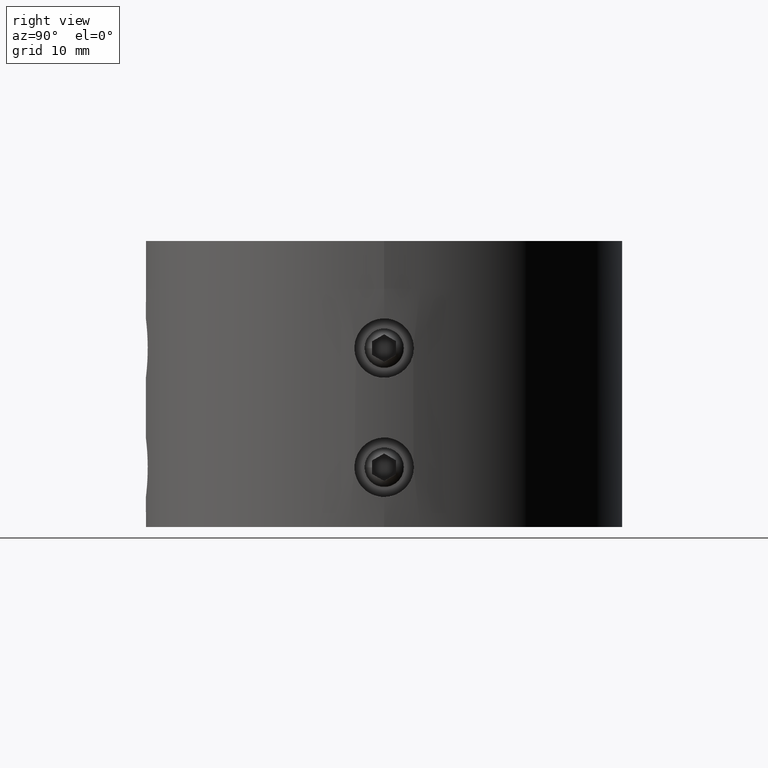
[diagram: clean part render]
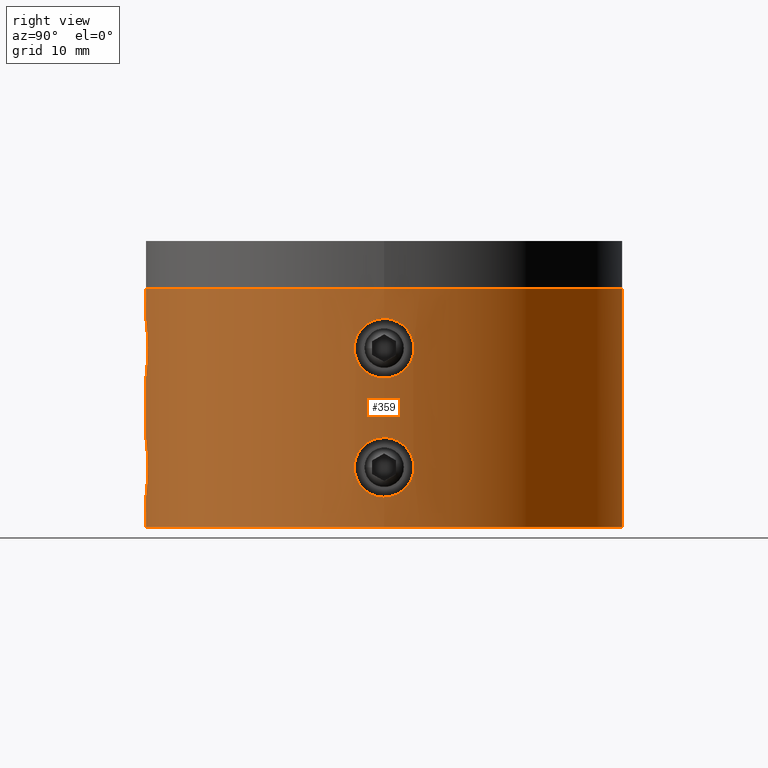
[diagram: same view with one face highlighted and labeled with its STEP entity id]
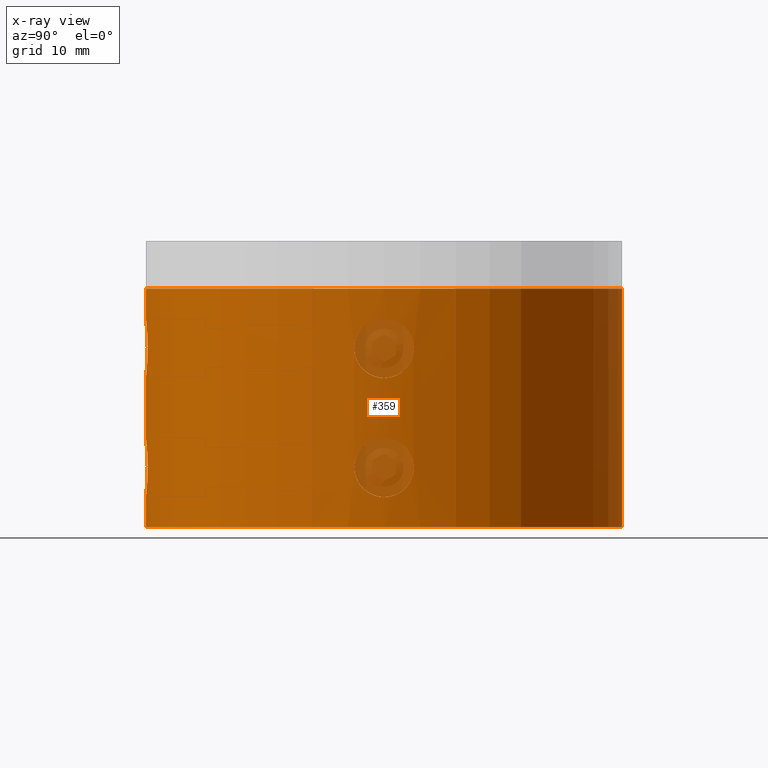
[diagram: x-ray of the same camera — body ghosted, the highlighted face saturated]
A machine part, right view. The second image highlights one B-rep face of the part: STEP entity #359.
The next image is the same camera in x-ray: the body ghosted, the highlighted face saturated — about 5% of this face is hidden behind the body in this view.
In plain terms, the highlighted cylindrical surface (bore or boss wall) has radius 20 mm, axis along (-0, 0, -1).
Its self-contained STEP definition (entity closure, byte-faithful):
#359 = ADVANCED_FACE( '', ( #430, #431, #432, #433, #434, #435 ), #436, .T. );
#430 = FACE_BOUND( '', #602, .T. );
#431 = FACE_BOUND( '', #603, .T. );
#432 = FACE_BOUND( '', #604, .T. );
#433 = FACE_BOUND( '', #605, .T. );
#434 = FACE_OUTER_BOUND( '', #606, .T. );
#435 = FACE_OUTER_BOUND( '', #607, .T. );
#436 = CYLINDRICAL_SURFACE( '', #608, 20.0000000000000 );
#602 = EDGE_LOOP( '', ( #774 ) );
#603 = EDGE_LOOP( '', ( #775 ) );
#604 = EDGE_LOOP( '', ( #776 ) );
#605 = EDGE_LOOP( '', ( #777 ) );
#606 = EDGE_LOOP( '', ( #778 ) );
#607 = EDGE_LOOP( '', ( #779 ) );
#608 = AXIS2_PLACEMENT_3D( '', #780, #781, #782 );
#774 = ORIENTED_EDGE( '', *, *, #1186, .F. );
#775 = ORIENTED_EDGE( '', *, *, #1187, .F. );
#776 = ORIENTED_EDGE( '', *, *, #1188, .F. );
#777 = ORIENTED_EDGE( '', *, *, #1189, .F. );
#778 = ORIENTED_EDGE( '', *, *, #1190, .T. );
#779 = ORIENTED_EDGE( '', *, *, #1191, .F. );
#780 = CARTESIAN_POINT( '', ( 0.000000000000000, 0.000000000000000, -34.0000000000000 ) );
#781 = DIRECTION( '', ( -0.000000000000000, 0.000000000000000, -1.00000000000000 ) );
#782 = DIRECTION( '', ( -1.00000000000000, 0.000000000000000, 0.000000000000000 ) );
#1186 = EDGE_CURVE( '', #1298, #1298, #1299, .T. );
#1187 = EDGE_CURVE( '', #1300, #1300, #1301, .T. );
#1188 = EDGE_CURVE( '', #1302, #1302, #1303, .T. );
#1189 = EDGE_CURVE( '', #1304, #1304, #1305, .T. );
#1190 = EDGE_CURVE( '', #1306, #1306, #1307, .T. );
#1191 = EDGE_CURVE( '', #1308, #1308, #1309, .T. );
#1298 = VERTEX_POINT( '', #1490 );
#1299 = B_SPLINE_CURVE_WITH_KNOTS( '', 3, ( #1491, #1492, #1493, #1494, #1495, #1496, #1497, #1498, #1499, #1500, #1501, #1502, #1503, #1504, #1505, #1506, #1507, #1508, #1509, #1510, #1511, #1512, #1513, #1514, #1515, #1516, #1517, #1518, #1519, #1520, #1521, #1522, #1523, #1524, #1525, #1526, #1527, #1528, #1529, #1530, #1531, #1532, #1533, #1534, #1535, #1536, #1537, #1538, #1539, #1540, #1541, #1542, #1543, #1544, #1545, #1546, #1547, #1548, #1549, #1550, #1551, #1552, #1553, #1554 ), .UNSPECIFIED., .T., .F., ( 2, 2, 2, 2, 2, 2, 2, 2, 2, 2, 2, 2, 2, 2, 2, 2, 2, 2, 2, 2, 2, 2, 2, 2, 2, 2, 2, 2, 2, 2, 2, 2, 2, 2 ), ( -0.000977855993839807, 0.000000000000000, 0.000488927996919902, 0.000977855993839803, 0.00146678399075970, 0.00195571198767961, 0.00244463998459951, 0.00293356798151941, 0.00342249597843931, 0.00391142397535921, 0.00440035197227912, 0.00488927996919902, 0.00537820796611892, 0.00586713596303882, 0.00635606395995872, 0.00684499195687862, 0.00733391995379852, 0.00782284795071843, 0.00831177594763833, 0.00880070394455823, 0.00928963194147813, 0.00977855993839803, 0.0102674879353179, 0.0107564159322378, 0.0112453439291577, 0.0117342719260776, 0.0122231999229975, 0.0127121279199174, 0.0132010559168373, 0.0136899839137572, 0.0141789119106771, 0.0146678399075971, 0.0156456959014369, 0.0161346238983568 ), .UNSPECIFIED. );
#1300 = VERTEX_POINT( '', #1555 );
#1301 = B_SPLINE_CURVE_WITH_KNOTS( '', 3, ( #1556, #1557, #1558, #1559, #1560, #1561, #1562, #1563, #1564, #1565, #1566, #1567, #1568, #1569, #1570, #1571, #1572, #1573, #1574, #1575, #1576, #1577, #1578, #1579, #1580, #1581, #1582, #1583, #1584, #1585, #1586, #1587, #1588, #1589, #1590, #1591, #1592, #1593, #1594, #1595, #1596, #1597, #1598, #1599, #1600, #1601, #1602, #1603, #1604, #1605, #1606, #1607, #1608, #1609, #1610, #1611, #1612, #1613, #1614, #1615, #1616, #1617, #1618, #1619 ), .UNSPECIFIED., .T., .F., ( 2, 2, 2, 2, 2, 2, 2, 2, 2, 2, 2, 2, 2, 2, 2, 2, 2, 2, 2, 2, 2, 2, 2, 2, 2, 2, 2, 2, 2, 2, 2, 2, 2, 2 ), ( -0.000977855993839807, 0.000000000000000, 0.000488927996919900, 0.000977855993839801, 0.00146678399075970, 0.00195571198767960, 0.00244463998459950, 0.00293356798151940, 0.00342249597843930, 0.00391142397535920, 0.00440035197227910, 0.00488927996919900, 0.00537820796611890, 0.00586713596303880, 0.00635606395995870, 0.00684499195687860, 0.00733391995379850, 0.00782284795071840, 0.00831177594763830, 0.00880070394455820, 0.00928963194147810, 0.00977855993839800, 0.0102674879353179, 0.0107564159322378, 0.0112453439291577, 0.0117342719260776, 0.0122231999229975, 0.0127121279199174, 0.0132010559168373, 0.0136899839137572, 0.0141789119106771, 0.0146678399075971, 0.0156456959014369, 0.0161346238983568 ), .UNSPECIFIED. );
#1302 = VERTEX_POINT( '', #1620 );
#1303 = B_SPLINE_CURVE_WITH_KNOTS( '', 3, ( #1621, #1622, #1623, #1624, #1625, #1626, #1627, #1628, #1629, #1630, #1631, #1632, #1633, #1634, #1635, #1636, #1637, #1638, #1639, #1640, #1641, #1642, #1643, #1644, #1645, #1646, #1647, #1648, #1649, #1650, #1651, #1652, #1653, #1654, #1655, #1656, #1657, #1658, #1659, #1660, #1661, #1662, #1663, #1664, #1665, #1666, #1667, #1668, #1669, #1670, #1671, #1672, #1673, #1674, #1675, #1676, #1677, #1678, #1679, #1680, #1681, #1682, #1683, #1684 ), .UNSPECIFIED., .T., .F., ( 2, 2, 2, 2, 2, 2, 2, 2, 2, 2, 2, 2, 2, 2, 2, 2, 2, 2, 2, 2, 2, 2, 2, 2, 2, 2, 2, 2, 2, 2, 2, 2, 2, 2 ), ( -0.000977855993839804, 0.000000000000000, 0.000488927996919902, 0.000977855993839804, 0.00146678399075971, 0.00195571198767961, 0.00244463998459951, 0.00293356798151941, 0.00342249597843931, 0.00391142397535922, 0.00440035197227912, 0.00488927996919902, 0.00537820796611892, 0.00586713596303882, 0.00635606395995873, 0.00684499195687863, 0.00733391995379853, 0.00782284795071843, 0.00831177594763833, 0.00880070394455823, 0.00928963194147813, 0.00977855993839804, 0.0102674879353179, 0.0107564159322378, 0.0112453439291577, 0.0117342719260776, 0.0122231999229975, 0.0127121279199175, 0.0132010559168374, 0.0136899839137573, 0.0141789119106772, 0.0146678399075971, 0.0156456959014369, 0.0161346238983568 ), .UNSPECIFIED. );
#1304 = VERTEX_POINT( '', #1685 );
#1305 = B_SPLINE_CURVE_WITH_KNOTS( '', 3, ( #1686, #1687, #1688, #1689, #1690, #1691, #1692, #1693, #1694, #1695, #1696, #1697, #1698, #1699, #1700, #1701, #1702, #1703, #1704, #1705, #1706, #1707, #1708, #1709, #1710, #1711, #1712, #1713, #1714, #1715, #1716, #1717, #1718, #1719, #1720, #1721, #1722, #1723, #1724, #1725, #1726, #1727, #1728, #1729, #1730, #1731, #1732, #1733, #1734, #1735, #1736, #1737, #1738, #1739, #1740, #1741, #1742, #1743, #1744, #1745, #1746, #1747, #1748, #1749 ), .UNSPECIFIED., .T., .F., ( 2, 2, 2, 2, 2, 2, 2, 2, 2, 2, 2, 2, 2, 2, 2, 2, 2, 2, 2, 2, 2, 2, 2, 2, 2, 2, 2, 2, 2, 2, 2, 2, 2, 2 ), ( -0.000977855993839807, 0.000000000000000, 0.000488927996919900, 0.000977855993839800, 0.00146678399075970, 0.00195571198767960, 0.00244463998459950, 0.00293356798151940, 0.00342249597843930, 0.00391142397535920, 0.00440035197227910, 0.00488927996919900, 0.00537820796611890, 0.00586713596303880, 0.00635606395995870, 0.00684499195687860, 0.00733391995379850, 0.00782284795071840, 0.00831177594763830, 0.00880070394455820, 0.00928963194147810, 0.00977855993839800, 0.0102674879353179, 0.0107564159322378, 0.0112453439291577, 0.0117342719260776, 0.0122231999229975, 0.0127121279199174, 0.0132010559168373, 0.0136899839137572, 0.0141789119106771, 0.0146678399075970, 0.0156456959014369, 0.0161346238983568 ), .UNSPECIFIED. );
#1306 = VERTEX_POINT( '', #1750 );
#1307 = CIRCLE( '', #1751, 20.0000000000000 );
#1308 = VERTEX_POINT( '', #1752 );
#1309 = CIRCLE( '', #1753, 20.0000000000000 );
#1490 = CARTESIAN_POINT( '', ( 19.8431348329844, 2.50000000000000, -19.0000000000000 ) );
#1491 = CARTESIAN_POINT( '', ( 19.8431348329845, 2.50000000000000, -19.3306705126766 ) );
#1492 = CARTESIAN_POINT( '', ( 19.8431348329844, 2.50000000000000, -18.8346647436617 ) );
#1493 = CARTESIAN_POINT( '', ( 19.8451999504549, 2.48376037073877, -18.6721250012391 ) );
#1494 = CARTESIAN_POINT( '', ( 19.8530563813011, 2.42016093962049, -18.3523977915416 ) );
#1495 = CARTESIAN_POINT( '', ( 19.8589407179123, 2.37201743676022, -18.1935412149563 ) );
#1496 = CARTESIAN_POINT( '', ( 19.8735331921165, 2.24647982846315, -17.8908693167274 ) );
#1497 = CARTESIAN_POINT( '', ( 19.8821728498970, 2.16968208183429, -17.7473415011313 ) );
#1498 = CARTESIAN_POINT( '', ( 19.9011332533963, 1.98826879469967, -17.4757097221840 ) );
#1499 = CARTESIAN_POINT( '', ( 19.9115168514063, 1.88278326122355, -17.3472250898610 ) );
#1500 = CARTESIAN_POINT( '', ( 19.9319598457381, 1.65237793511715, -17.1168683339005 ) );
#1501 = CARTESIAN_POINT( '', ( 19.9421201764693, 1.52662867647319, -17.0134408339376 ) );
#1502 = CARTESIAN_POINT( '', ( 19.9611549636309, 1.25341324649460, -16.8306757573824 ) );
#1503 = CARTESIAN_POINT( '', ( 19.9698442585154, 1.10814451730824, -16.7531093816609 ) );
#1504 = CARTESIAN_POINT( '', ( 19.9842630899309, 0.807398744752935, -16.6283741886647 ) );
#1505 = CARTESIAN_POINT( '', ( 19.9900965559976, 0.649693297575543, -16.5802938453219 ) );
#1506 = CARTESIAN_POINT( '', ( 19.9979795752332, 0.326916820581655, -16.5160103365106 ) );
#1507 = CARTESIAN_POINT( '', ( 19.9999886238825, 0.164603943620750, -16.5000910089542 ) );
#1508 = CARTESIAN_POINT( '', ( 20.0000112797773, -0.161827755542730, -16.4999097617679 ) );
#1509 = CARTESIAN_POINT( '', ( 19.9979596225618, -0.327637660979743, -16.5161737910485 ) );
#1510 = CARTESIAN_POINT( '', ( 19.9901307806305, -0.648387905341472, -16.5800140088476 ) );
#1511 = CARTESIAN_POINT( '', ( 19.9843959457373, -0.804303507921184, -16.6272475534347 ) );
#1512 = CARTESIAN_POINT( '', ( 19.9699060193386, -1.10717615023170, -16.7525527196630 ) );
#1513 = CARTESIAN_POINT( '', ( 19.9611500654949, -1.25335531491191, -16.8307604972882 ) );
#1514 = CARTESIAN_POINT( '', ( 19.9423067182636, -1.52407815984763, -17.0116123797864 ) );
#1515 = CARTESIAN_POINT( '', ( 19.9321298958606, -1.65042842490572, -17.1149845434462 ) );
#1516 = CARTESIAN_POINT( '', ( 19.9114344757626, -1.88374448601919, -17.3481210793233 ) );
#1517 = CARTESIAN_POINT( '', ( 19.9012517915749, -1.98707402278861, -17.4742111163077 ) );
#1518 = CARTESIAN_POINT( '', ( 19.8823397906495, -2.16814448154623, -17.7447532526308 ) );
#1519 = CARTESIAN_POINT( '', ( 19.8735289657585, -2.24651682267176, -17.8909482132179 ) );
#1520 = CARTESIAN_POINT( '', ( 19.8589395811235, -2.37202658093808, -18.1935735621677 ) );
#1521 = CARTESIAN_POINT( '', ( 19.8531508773540, -2.41938917193464, -18.3493960607167 ) );
#1522 = CARTESIAN_POINT( '', ( 19.8452310387218, -2.48351540039675, -18.6700292329952 ) );
#1523 = CARTESIAN_POINT( '', ( 19.8431425766259, -2.49993853674691, -18.8358344136032 ) );
#1524 = CARTESIAN_POINT( '', ( 19.8431271337471, -2.50006111080627, -19.1622882297131 ) );
#1525 = CARTESIAN_POINT( '', ( 19.8451338844150, -2.48429074703692, -19.3246278320017 ) );
#1526 = CARTESIAN_POINT( '', ( 19.8530400374251, -2.42029764255657, -19.6474898196562 ) );
#1527 = CARTESIAN_POINT( '', ( 19.8588973896626, -2.37236638894921, -19.8052305300815 ) );
#1528 = CARTESIAN_POINT( '', ( 19.8733754015875, -2.24786075283608, -20.1061828627539 ) );
#1529 = CARTESIAN_POINT( '', ( 19.8821072736234, -2.17030446512811, -20.2517023406937 ) );
#1530 = CARTESIAN_POINT( '', ( 19.9011750398982, -1.98787402582729, -20.5249055965844 ) );
#1531 = CARTESIAN_POINT( '', ( 19.9113468003888, -1.88457572592326, -20.6507362445156 ) );
#1532 = CARTESIAN_POINT( '', ( 19.9317969003718, -1.65433654206872, -20.8814160680915 ) );
#1533 = CARTESIAN_POINT( '', ( 19.9421701949708, -1.52589079017970, -20.9870335460305 ) );
#1534 = CARTESIAN_POINT( '', ( 19.9610766249009, -1.25455759675432, -21.1685779333544 ) );
#1535 = CARTESIAN_POINT( '', ( 19.9696857444592, -1.11112527388525, -21.2454963903480 ) );
#1536 = CARTESIAN_POINT( '', ( 19.9842256063626, -0.808501713495634, -21.3713241854725 ) );
#1537 = CARTESIAN_POINT( '', ( 19.9900821476984, -0.649745315512696, -21.4195844547583 ) );
#1538 = CARTESIAN_POINT( '', ( 19.9979140175442, -0.330133599730241, -21.4834592235565 ) );
#1539 = CARTESIAN_POINT( '', ( 19.9999811730103, -0.167580600947785, -21.4998493840222 ) );
#1540 = CARTESIAN_POINT( '', ( 20.0000185711153, 0.163056228412592, -21.5001485689827 ) );
#1541 = CARTESIAN_POINT( '', ( 19.9979889733206, 0.325610539741725, -21.4840592000678 ) );
#1542 = CARTESIAN_POINT( '', ( 19.9902229447223, 0.645423753004395, -21.4207437931533 ) );
#1543 = CARTESIAN_POINT( '', ( 19.9843933723230, 0.804356341668876, -21.3727301256626 ) );
#1544 = CARTESIAN_POINT( '', ( 19.9699091692519, 1.10711126629625, -21.2474745866527 ) );
#1545 = CARTESIAN_POINT( '', ( 19.9613193602182, 1.25071726811698, -21.1708041390043 ) );
#1546 = CARTESIAN_POINT( '', ( 19.9424262738342, 1.52256316718686, -20.9895943547894 ) );
#1547 = CARTESIAN_POINT( '', ( 19.9320642731651, 1.65112247035723, -20.8842313087022 ) );
#1548 = CARTESIAN_POINT( '', ( 19.9116232121634, 1.88166220627925, -20.6540496903880 ) );
#1549 = CARTESIAN_POINT( '', ( 19.9014421655392, 1.98521228174483, -20.5283843505121 ) );
#1550 = CARTESIAN_POINT( '', ( 19.8823315901916, 2.16826165615632, -20.2552561160668 ) );
#1551 = CARTESIAN_POINT( '', ( 19.8735970675182, 2.24590709303218, -20.1101363813470 ) );
#1552 = CARTESIAN_POINT( '', ( 19.8518099130265, 2.43340902181754, -19.6591861310939 ) );
#1553 = CARTESIAN_POINT( '', ( 19.8431348329845, 2.50000000000000, -19.3306705126766 ) );
#1554 = CARTESIAN_POINT( '', ( 19.8431348329844, 2.50000000000000, -18.8346647436617 ) );
#1555 = CARTESIAN_POINT( '', ( 19.8431348329844, 2.50000000000000, -29.0000000000000 ) );
#1556 = CARTESIAN_POINT( '', ( 19.8431348329844, 2.50000000000000, -29.3306705126766 ) );
#1557 = CARTESIAN_POINT( '', ( 19.8431348329844, 2.50000000000000, -28.8346647436617 ) );
#1558 = CARTESIAN_POINT( '', ( 19.8451999504549, 2.48376037073876, -28.6721250012390 ) );
#1559 = CARTESIAN_POINT( '', ( 19.8530563813011, 2.42016093962049, -28.3523977915416 ) );
#1560 = CARTESIAN_POINT( '', ( 19.8589407179123, 2.37201743676022, -28.1935412149563 ) );
#1561 = CARTESIAN_POINT( '', ( 19.8735331921166, 2.24647982846315, -27.8908693167274 ) );
#1562 = CARTESIAN_POINT( '', ( 19.8821728498970, 2.16968208183429, -27.7473415011313 ) );
#1563 = CARTESIAN_POINT( '', ( 19.9011332533963, 1.98826879469967, -27.4757097221840 ) );
#1564 = CARTESIAN_POINT( '', ( 19.9115168514063, 1.88278326122355, -27.3472250898610 ) );
#1565 = CARTESIAN_POINT( '', ( 19.9319598457381, 1.65237793511715, -27.1168683339005 ) );
#1566 = CARTESIAN_POINT( '', ( 19.9421201764693, 1.52662867647319, -27.0134408339376 ) );
#1567 = CARTESIAN_POINT( '', ( 19.9611549636309, 1.25341324649460, -26.8306757573824 ) );
#1568 = CARTESIAN_POINT( '', ( 19.9698442585154, 1.10814451730824, -26.7531093816609 ) );
#1569 = CARTESIAN_POINT( '', ( 19.9842630899309, 0.807398744752936, -26.6283741886647 ) );
#1570 = CARTESIAN_POINT( '', ( 19.9900965559976, 0.649693297575543, -26.5802938453220 ) );
#1571 = CARTESIAN_POINT( '', ( 19.9979795752332, 0.326916820581655, -26.5160103365106 ) );
#1572 = CARTESIAN_POINT( '', ( 19.9999886238825, 0.164603943620750, -26.5000910089542 ) );
#1573 = CARTESIAN_POINT( '', ( 20.0000112797773, -0.161827755542730, -26.4999097617679 ) );
#1574 = CARTESIAN_POINT( '', ( 19.9979596225619, -0.327637660979743, -26.5161737910485 ) );
#1575 = CARTESIAN_POINT( '', ( 19.9901307806305, -0.648387905341472, -26.5800140088477 ) );
#1576 = CARTESIAN_POINT( '', ( 19.9843959457373, -0.804303507921183, -26.6272475534347 ) );
#1577 = CARTESIAN_POINT( '', ( 19.9699060193386, -1.10717615023170, -26.7525527196630 ) );
#1578 = CARTESIAN_POINT( '', ( 19.9611500654949, -1.25335531491191, -26.8307604972882 ) );
#1579 = CARTESIAN_POINT( '', ( 19.9423067182636, -1.52407815984763, -27.0116123797864 ) );
#1580 = CARTESIAN_POINT( '', ( 19.9321298958606, -1.65042842490572, -27.1149845434462 ) );
#1581 = CARTESIAN_POINT( '', ( 19.9114344757627, -1.88374448601919, -27.3481210793233 ) );
#1582 = CARTESIAN_POINT( '', ( 19.9012517915749, -1.98707402278862, -27.4742111163077 ) );
#1583 = CARTESIAN_POINT( '', ( 19.8823397906495, -2.16814448154623, -27.7447532526308 ) );
#1584 = CARTESIAN_POINT( '', ( 19.8735289657585, -2.24651682267176, -27.8909482132179 ) );
#1585 = CARTESIAN_POINT( '', ( 19.8589395811235, -2.37202658093809, -28.1935735621677 ) );
#1586 = CARTESIAN_POINT( '', ( 19.8531508773540, -2.41938917193465, -28.3493960607167 ) );
#1587 = CARTESIAN_POINT( '', ( 19.8452310387218, -2.48351540039675, -28.6700292329952 ) );
#1588 = CARTESIAN_POINT( '', ( 19.8431425766259, -2.49993853674691, -28.8358344136032 ) );
#1589 = CARTESIAN_POINT( '', ( 19.8431271337471, -2.50006111080627, -29.1622882297131 ) );
#1590 = CARTESIAN_POINT( '', ( 19.8451338844150, -2.48429074703692, -29.3246278320017 ) );
#1591 = CARTESIAN_POINT( '', ( 19.8530400374251, -2.42029764255657, -29.6474898196562 ) );
#1592 = CARTESIAN_POINT( '', ( 19.8588973896626, -2.37236638894921, -29.8052305300815 ) );
#1593 = CARTESIAN_POINT( '', ( 19.8733754015875, -2.24786075283608, -30.1061828627539 ) );
#1594 = CARTESIAN_POINT( '', ( 19.8821072736234, -2.17030446512811, -30.2517023406938 ) );
#1595 = CARTESIAN_POINT( '', ( 19.9011750398982, -1.98787402582729, -30.5249055965844 ) );
#1596 = CARTESIAN_POINT( '', ( 19.9113468003888, -1.88457572592326, -30.6507362445156 ) );
#1597 = CARTESIAN_POINT( '', ( 19.9317969003718, -1.65433654206872, -30.8814160680915 ) );
#1598 = CARTESIAN_POINT( '', ( 19.9421701949708, -1.52589079017970, -30.9870335460305 ) );
#1599 = CARTESIAN_POINT( '', ( 19.9610766249008, -1.25455759675432, -31.1685779333544 ) );
#1600 = CARTESIAN_POINT( '', ( 19.9696857444592, -1.11112527388525, -31.2454963903480 ) );
#1601 = CARTESIAN_POINT( '', ( 19.9842256063626, -0.808501713495634, -31.3713241854725 ) );
#1602 = CARTESIAN_POINT( '', ( 19.9900821476984, -0.649745315512693, -31.4195844547583 ) );
#1603 = CARTESIAN_POINT( '', ( 19.9979140175442, -0.330133599730240, -31.4834592235565 ) );
#1604 = CARTESIAN_POINT( '', ( 19.9999811730103, -0.167580600947783, -31.4998493840222 ) );
#1605 = CARTESIAN_POINT( '', ( 20.0000185711153, 0.163056228412593, -31.5001485689827 ) );
#1606 = CARTESIAN_POINT( '', ( 19.9979889733206, 0.325610539741726, -31.4840592000678 ) );
#1607 = CARTESIAN_POINT( '', ( 19.9902229447223, 0.645423753004396, -31.4207437931533 ) );
#1608 = CARTESIAN_POINT( '', ( 19.9843933723230, 0.804356341668873, -31.3727301256626 ) );
#1609 = CARTESIAN_POINT( '', ( 19.9699091692519, 1.10711126629625, -31.2474745866527 ) );
#1610 = CARTESIAN_POINT( '', ( 19.9613193602182, 1.25071726811698, -31.1708041390043 ) );
#1611 = CARTESIAN_POINT( '', ( 19.9424262738342, 1.52256316718686, -30.9895943547894 ) );
#1612 = CARTESIAN_POINT( '', ( 19.9320642731651, 1.65112247035723, -30.8842313087022 ) );
#1613 = CARTESIAN_POINT( '', ( 19.9116232121634, 1.88166220627925, -30.6540496903880 ) );
#1614 = CARTESIAN_POINT( '', ( 19.9014421655392, 1.98521228174483, -30.5283843505121 ) );
#1615 = CARTESIAN_POINT( '', ( 19.8823315901916, 2.16826165615632, -30.2552561160668 ) );
#1616 = CARTESIAN_POINT( '', ( 19.8735970675182, 2.24590709303218, -30.1101363813470 ) );
#1617 = CARTESIAN_POINT( '', ( 19.8518099130265, 2.43340902181753, -29.6591861310939 ) );
#1618 = CARTESIAN_POINT( '', ( 19.8431348329844, 2.50000000000000, -29.3306705126766 ) );
#1619 = CARTESIAN_POINT( '', ( 19.8431348329844, 2.50000000000000, -28.8346647436617 ) );
#1620 = CARTESIAN_POINT( '', ( 2.50000000000000, -19.8431348329844, -19.0000000000000 ) );
#1621 = CARTESIAN_POINT( '', ( 2.50000000000000, -19.8431348329844, -19.3306705126766 ) );
#1622 = CARTESIAN_POINT( '', ( 2.50000000000000, -19.8431348329844, -18.8346647436617 ) );
#1623 = CARTESIAN_POINT( '', ( 2.48376037073876, -19.8451999504549, -18.6721250012390 ) );
#1624 = CARTESIAN_POINT( '', ( 2.42016093962049, -19.8530563813011, -18.3523977915416 ) );
#1625 = CARTESIAN_POINT( '', ( 2.37201743676022, -19.8589407179123, -18.1935412149563 ) );
#1626 = CARTESIAN_POINT( '', ( 2.24647982846315, -19.8735331921166, -17.8908693167274 ) );
#1627 = CARTESIAN_POINT( '', ( 2.16968208183429, -19.8821728498970, -17.7473415011313 ) );
#1628 = CARTESIAN_POINT( '', ( 1.98826879469967, -19.9011332533963, -17.4757097221840 ) );
#1629 = CARTESIAN_POINT( '', ( 1.88278326122355, -19.9115168514063, -17.3472250898610 ) );
#1630 = CARTESIAN_POINT( '', ( 1.65237793511716, -19.9319598457381, -17.1168683339005 ) );
#1631 = CARTESIAN_POINT( '', ( 1.52662867647319, -19.9421201764693, -17.0134408339376 ) );
#1632 = CARTESIAN_POINT( '', ( 1.25341324649460, -19.9611549636309, -16.8306757573824 ) );
#1633 = CARTESIAN_POINT( '', ( 1.10814451730824, -19.9698442585154, -16.7531093816609 ) );
#1634 = CARTESIAN_POINT( '', ( 0.807398744752936, -19.9842630899309, -16.6283741886647 ) );
#1635 = CARTESIAN_POINT( '', ( 0.649693297575544, -19.9900965559976, -16.5802938453220 ) );
#1636 = CARTESIAN_POINT( '', ( 0.326916820581656, -19.9979795752332, -16.5160103365106 ) );
#1637 = CARTESIAN_POINT( '', ( 0.164603943620751, -19.9999886238825, -16.5000910089542 ) );
#1638 = CARTESIAN_POINT( '', ( -0.161827755542729, -20.0000112797773, -16.4999097617679 ) );
#1639 = CARTESIAN_POINT( '', ( -0.327637660979741, -19.9979596225618, -16.5161737910485 ) );
#1640 = CARTESIAN_POINT( '', ( -0.648387905341471, -19.9901307806306, -16.5800140088477 ) );
#1641 = CARTESIAN_POINT( '', ( -0.804303507921183, -19.9843959457373, -16.6272475534347 ) );
#1642 = CARTESIAN_POINT( '', ( -1.10717615023170, -19.9699060193386, -16.7525527196630 ) );
#1643 = CARTESIAN_POINT( '', ( -1.25335531491191, -19.9611500654949, -16.8307604972882 ) );
#1644 = CARTESIAN_POINT( '', ( -1.52407815984763, -19.9423067182636, -17.0116123797864 ) );
#1645 = CARTESIAN_POINT( '', ( -1.65042842490572, -19.9321298958606, -17.1149845434462 ) );
#1646 = CARTESIAN_POINT( '', ( -1.88374448601919, -19.9114344757626, -17.3481210793233 ) );
#1647 = CARTESIAN_POINT( '', ( -1.98707402278861, -19.9012517915749, -17.4742111163077 ) );
#1648 = CARTESIAN_POINT( '', ( -2.16814448154623, -19.8823397906495, -17.7447532526308 ) );
#1649 = CARTESIAN_POINT( '', ( -2.24651682267176, -19.8735289657586, -17.8909482132179 ) );
#1650 = CARTESIAN_POINT( '', ( -2.37202658093809, -19.8589395811235, -18.1935735621677 ) );
#1651 = CARTESIAN_POINT( '', ( -2.41938917193464, -19.8531508773540, -18.3493960607167 ) );
#1652 = CARTESIAN_POINT( '', ( -2.48351540039675, -19.8452310387218, -18.6700292329952 ) );
#1653 = CARTESIAN_POINT( '', ( -2.49993853674691, -19.8431425766259, -18.8358344136032 ) );
#1654 = CARTESIAN_POINT( '', ( -2.50006111080627, -19.8431271337471, -19.1622882297131 ) );
#1655 = CARTESIAN_POINT( '', ( -2.48429074703691, -19.8451338844150, -19.3246278320017 ) );
#1656 = CARTESIAN_POINT( '', ( -2.42029764255657, -19.8530400374251, -19.6474898196562 ) );
#1657 = CARTESIAN_POINT( '', ( -2.37236638894921, -19.8588973896626, -19.8052305300815 ) );
#1658 = CARTESIAN_POINT( '', ( -2.24786075283608, -19.8733754015875, -20.1061828627539 ) );
#1659 = CARTESIAN_POINT( '', ( -2.17030446512810, -19.8821072736234, -20.2517023406937 ) );
#1660 = CARTESIAN_POINT( '', ( -1.98787402582728, -19.9011750398982, -20.5249055965844 ) );
#1661 = CARTESIAN_POINT( '', ( -1.88457572592326, -19.9113468003888, -20.6507362445156 ) );
#1662 = CARTESIAN_POINT( '', ( -1.65433654206871, -19.9317969003718, -20.8814160680915 ) );
#1663 = CARTESIAN_POINT( '', ( -1.52589079017969, -19.9421701949708, -20.9870335460305 ) );
#1664 = CARTESIAN_POINT( '', ( -1.25455759675431, -19.9610766249009, -21.1685779333544 ) );
#1665 = CARTESIAN_POINT( '', ( -1.11112527388525, -19.9696857444592, -21.2454963903479 ) );
#1666 = CARTESIAN_POINT( '', ( -0.808501713495629, -19.9842256063626, -21.3713241854725 ) );
#1667 = CARTESIAN_POINT( '', ( -0.649745315512691, -19.9900821476984, -21.4195844547583 ) );
#1668 = CARTESIAN_POINT( '', ( -0.330133599730238, -19.9979140175442, -21.4834592235565 ) );
#1669 = CARTESIAN_POINT( '', ( -0.167580600947779, -19.9999811730103, -21.4998493840222 ) );
#1670 = CARTESIAN_POINT( '', ( 0.163056228412596, -20.0000185711153, -21.5001485689827 ) );
#1671 = CARTESIAN_POINT( '', ( 0.325610539741731, -19.9979889733206, -21.4840592000678 ) );
#1672 = CARTESIAN_POINT( '', ( 0.645423753004402, -19.9902229447223, -21.4207437931533 ) );
#1673 = CARTESIAN_POINT( '', ( 0.804356341668881, -19.9843933723230, -21.3727301256626 ) );
#1674 = CARTESIAN_POINT( '', ( 1.10711126629626, -19.9699091692519, -21.2474745866527 ) );
#1675 = CARTESIAN_POINT( '', ( 1.25071726811698, -19.9613193602182, -21.1708041390043 ) );
#1676 = CARTESIAN_POINT( '', ( 1.52256316718686, -19.9424262738343, -20.9895943547894 ) );
#1677 = CARTESIAN_POINT( '', ( 1.65112247035723, -19.9320642731651, -20.8842313087022 ) );
#1678 = CARTESIAN_POINT( '', ( 1.88166220627925, -19.9116232121634, -20.6540496903880 ) );
#1679 = CARTESIAN_POINT( '', ( 1.98521228174484, -19.9014421655392, -20.5283843505121 ) );
#1680 = CARTESIAN_POINT( '', ( 2.16826165615633, -19.8823315901916, -20.2552561160668 ) );
#1681 = CARTESIAN_POINT( '', ( 2.24590709303218, -19.8735970675182, -20.1101363813470 ) );
#1682 = CARTESIAN_POINT( '', ( 2.43340902181754, -19.8518099130265, -19.6591861310939 ) );
#1683 = CARTESIAN_POINT( '', ( 2.50000000000000, -19.8431348329844, -19.3306705126766 ) );
#1684 = CARTESIAN_POINT( '', ( 2.50000000000000, -19.8431348329844, -18.8346647436617 ) );
#1685 = CARTESIAN_POINT( '', ( 2.50000000000000, -19.8431348329844, -29.0000000000000 ) );
#1686 = CARTESIAN_POINT( '', ( 2.50000000000000, -19.8431348329844, -29.3306705126766 ) );
#1687 = CARTESIAN_POINT( '', ( 2.50000000000000, -19.8431348329844, -28.8346647436617 ) );
#1688 = CARTESIAN_POINT( '', ( 2.48376037073877, -19.8451999504549, -28.6721250012390 ) );
#1689 = CARTESIAN_POINT( '', ( 2.42016093962049, -19.8530563813011, -28.3523977915416 ) );
#1690 = CARTESIAN_POINT( '', ( 2.37201743676022, -19.8589407179123, -28.1935412149563 ) );
#1691 = CARTESIAN_POINT( '', ( 2.24647982846315, -19.8735331921165, -27.8908693167274 ) );
#1692 = CARTESIAN_POINT( '', ( 2.16968208183429, -19.8821728498970, -27.7473415011313 ) );
#1693 = CARTESIAN_POINT( '', ( 1.98826879469967, -19.9011332533963, -27.4757097221840 ) );
#1694 = CARTESIAN_POINT( '', ( 1.88278326122355, -19.9115168514063, -27.3472250898610 ) );
#1695 = CARTESIAN_POINT( '', ( 1.65237793511716, -19.9319598457381, -27.1168683339005 ) );
#1696 = CARTESIAN_POINT( '', ( 1.52662867647319, -19.9421201764693, -27.0134408339376 ) );
#1697 = CARTESIAN_POINT( '', ( 1.25341324649460, -19.9611549636309, -26.8306757573824 ) );
#1698 = CARTESIAN_POINT( '', ( 1.10814451730824, -19.9698442585154, -26.7531093816609 ) );
#1699 = CARTESIAN_POINT( '', ( 0.807398744752937, -19.9842630899309, -26.6283741886647 ) );
#1700 = CARTESIAN_POINT( '', ( 0.649693297575545, -19.9900965559976, -26.5802938453220 ) );
#1701 = CARTESIAN_POINT( '', ( 0.326916820581657, -19.9979795752332, -26.5160103365106 ) );
#1702 = CARTESIAN_POINT( '', ( 0.164603943620752, -19.9999886238825, -26.5000910089542 ) );
#1703 = CARTESIAN_POINT( '', ( -0.161827755542728, -20.0000112797773, -26.4999097617679 ) );
#1704 = CARTESIAN_POINT( '', ( -0.327637660979741, -19.9979596225618, -26.5161737910485 ) );
#1705 = CARTESIAN_POINT( '', ( -0.648387905341470, -19.9901307806306, -26.5800140088477 ) );
#1706 = CARTESIAN_POINT( '', ( -0.804303507921183, -19.9843959457373, -26.6272475534347 ) );
#1707 = CARTESIAN_POINT( '', ( -1.10717615023170, -19.9699060193386, -26.7525527196630 ) );
#1708 = CARTESIAN_POINT( '', ( -1.25335531491191, -19.9611500654949, -26.8307604972882 ) );
#1709 = CARTESIAN_POINT( '', ( -1.52407815984763, -19.9423067182636, -27.0116123797864 ) );
#1710 = CARTESIAN_POINT( '', ( -1.65042842490572, -19.9321298958606, -27.1149845434462 ) );
#1711 = CARTESIAN_POINT( '', ( -1.88374448601918, -19.9114344757626, -27.3481210793233 ) );
#1712 = CARTESIAN_POINT( '', ( -1.98707402278861, -19.9012517915749, -27.4742111163077 ) );
#1713 = CARTESIAN_POINT( '', ( -2.16814448154623, -19.8823397906495, -27.7447532526308 ) );
#1714 = CARTESIAN_POINT( '', ( -2.24651682267176, -19.8735289657585, -27.8909482132179 ) );
#1715 = CARTESIAN_POINT( '', ( -2.37202658093809, -19.8589395811235, -28.1935735621677 ) );
#1716 = CARTESIAN_POINT( '', ( -2.41938917193464, -19.8531508773540, -28.3493960607167 ) );
#1717 = CARTESIAN_POINT( '', ( -2.48351540039675, -19.8452310387218, -28.6700292329952 ) );
#1718 = CARTESIAN_POINT( '', ( -2.49993853674691, -19.8431425766259, -28.8358344136032 ) );
#1719 = CARTESIAN_POINT( '', ( -2.50006111080627, -19.8431271337471, -29.1622882297131 ) );
#1720 = CARTESIAN_POINT( '', ( -2.48429074703692, -19.8451338844150, -29.3246278320017 ) );
#1721 = CARTESIAN_POINT( '', ( -2.42029764255657, -19.8530400374251, -29.6474898196562 ) );
#1722 = CARTESIAN_POINT( '', ( -2.37236638894921, -19.8588973896626, -29.8052305300815 ) );
#1723 = CARTESIAN_POINT( '', ( -2.24786075283608, -19.8733754015875, -30.1061828627539 ) );
#1724 = CARTESIAN_POINT( '', ( -2.17030446512811, -19.8821072736234, -30.2517023406938 ) );
#1725 = CARTESIAN_POINT( '', ( -1.98787402582729, -19.9011750398982, -30.5249055965844 ) );
#1726 = CARTESIAN_POINT( '', ( -1.88457572592326, -19.9113468003888, -30.6507362445156 ) );
#1727 = CARTESIAN_POINT( '', ( -1.65433654206872, -19.9317969003718, -30.8814160680915 ) );
#1728 = CARTESIAN_POINT( '', ( -1.52589079017970, -19.9421701949708, -30.9870335460305 ) );
#1729 = CARTESIAN_POINT( '', ( -1.25455759675432, -19.9610766249008, -31.1685779333544 ) );
#1730 = CARTESIAN_POINT( '', ( -1.11112527388525, -19.9696857444592, -31.2454963903480 ) );
#1731 = CARTESIAN_POINT( '', ( -0.808501713495634, -19.9842256063626, -31.3713241854725 ) );
#1732 = CARTESIAN_POINT( '', ( -0.649745315512695, -19.9900821476984, -31.4195844547583 ) );
#1733 = CARTESIAN_POINT( '', ( -0.330133599730241, -19.9979140175442, -31.4834592235565 ) );
#1734 = CARTESIAN_POINT( '', ( -0.167580600947784, -19.9999811730103, -31.4998493840222 ) );
#1735 = CARTESIAN_POINT( '', ( 0.163056228412592, -20.0000185711153, -31.5001485689827 ) );
#1736 = CARTESIAN_POINT( '', ( 0.325610539741726, -19.9979889733206, -31.4840592000678 ) );
#1737 = CARTESIAN_POINT( '', ( 0.645423753004395, -19.9902229447223, -31.4207437931533 ) );
#1738 = CARTESIAN_POINT( '', ( 0.804356341668873, -19.9843933723230, -31.3727301256626 ) );
#1739 = CARTESIAN_POINT( '', ( 1.10711126629625, -19.9699091692519, -31.2474745866527 ) );
#1740 = CARTESIAN_POINT( '', ( 1.25071726811698, -19.9613193602182, -31.1708041390043 ) );
#1741 = CARTESIAN_POINT( '', ( 1.52256316718686, -19.9424262738343, -30.9895943547894 ) );
#1742 = CARTESIAN_POINT( '', ( 1.65112247035723, -19.9320642731651, -30.8842313087022 ) );
#1743 = CARTESIAN_POINT( '', ( 1.88166220627925, -19.9116232121634, -30.6540496903880 ) );
#1744 = CARTESIAN_POINT( '', ( 1.98521228174483, -19.9014421655392, -30.5283843505121 ) );
#1745 = CARTESIAN_POINT( '', ( 2.16826165615632, -19.8823315901916, -30.2552561160668 ) );
#1746 = CARTESIAN_POINT( '', ( 2.24590709303218, -19.8735970675182, -30.1101363813470 ) );
#1747 = CARTESIAN_POINT( '', ( 2.43340902181754, -19.8518099130265, -29.6591861310939 ) );
#1748 = CARTESIAN_POINT( '', ( 2.50000000000000, -19.8431348329844, -29.3306705126766 ) );
#1749 = CARTESIAN_POINT( '', ( 2.50000000000000, -19.8431348329844, -28.8346647436617 ) );
#1750 = CARTESIAN_POINT( '', ( 20.0000000000000, 0.000000000000000, -34.0000000000000 ) );
#1751 = AXIS2_PLACEMENT_3D( '', #2314, #2315, #2316 );
#1752 = CARTESIAN_POINT( '', ( 20.0000000000000, 0.000000000000000, -14.0000000000000 ) );
#1753 = AXIS2_PLACEMENT_3D( '', #2317, #2318, #2319 );
#2314 = CARTESIAN_POINT( '', ( 0.000000000000000, 0.000000000000000, -34.0000000000000 ) );
#2315 = DIRECTION( '', ( 0.000000000000000, -0.000000000000000, 1.00000000000000 ) );
#2316 = DIRECTION( '', ( 1.00000000000000, 0.000000000000000, 0.000000000000000 ) );
#2317 = CARTESIAN_POINT( '', ( 0.000000000000000, 0.000000000000000, -14.0000000000000 ) );
#2318 = DIRECTION( '', ( 0.000000000000000, -0.000000000000000, 1.00000000000000 ) );
#2319 = DIRECTION( '', ( 1.00000000000000, 0.000000000000000, 0.000000000000000 ) );